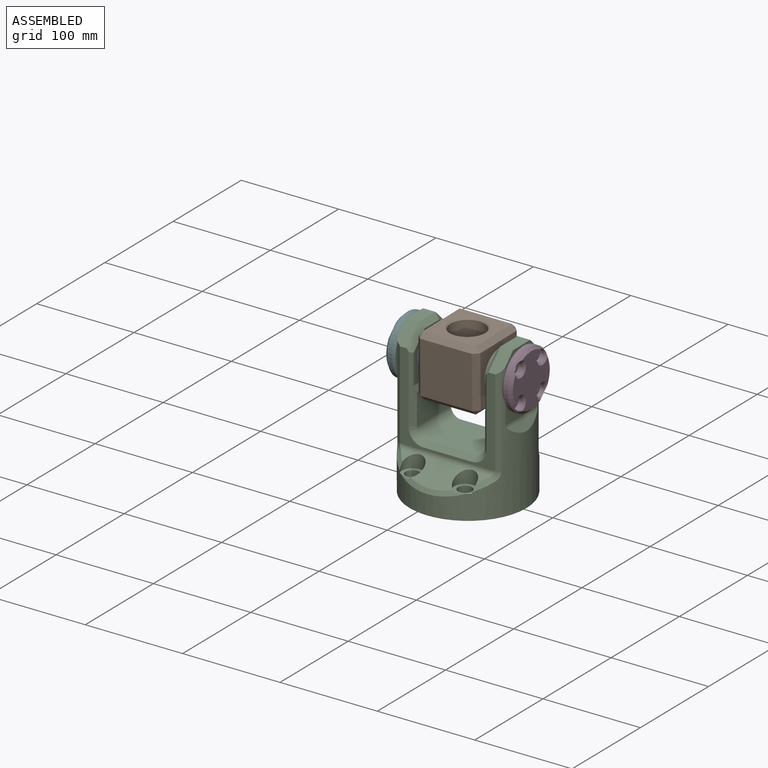
[diagram: assembled view]
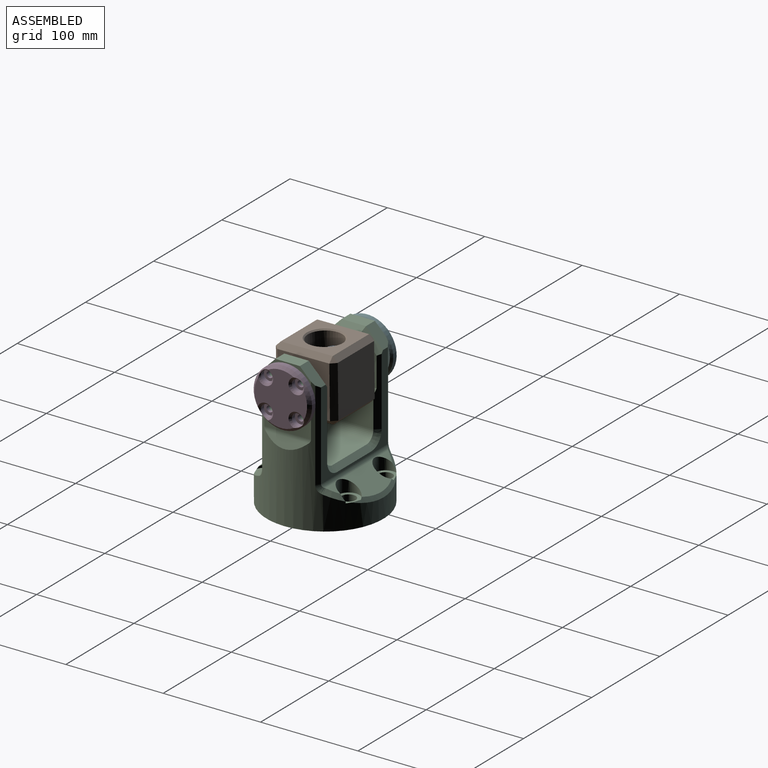
[diagram: assembled view, second angle]
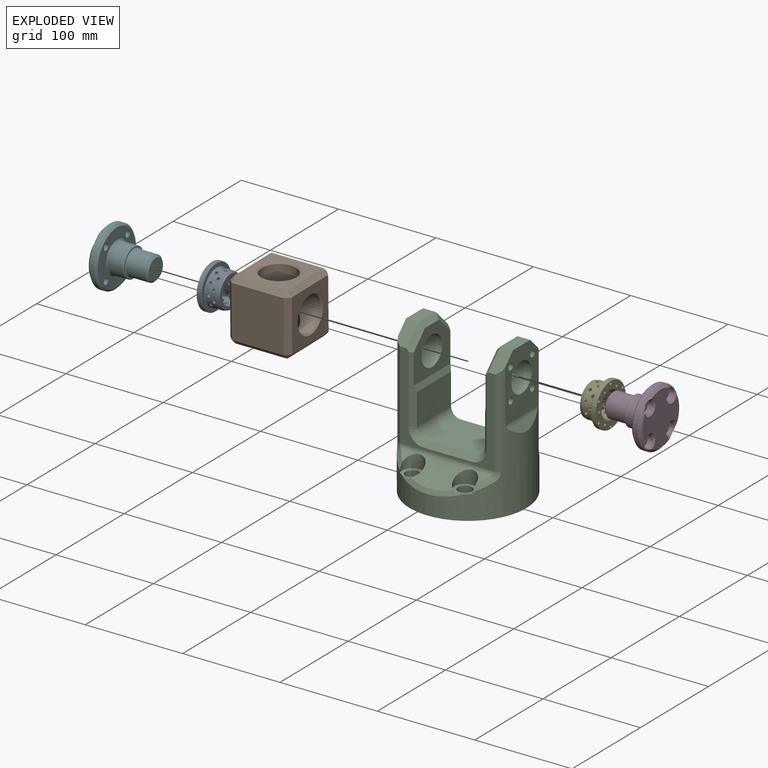
[diagram: exploded view]
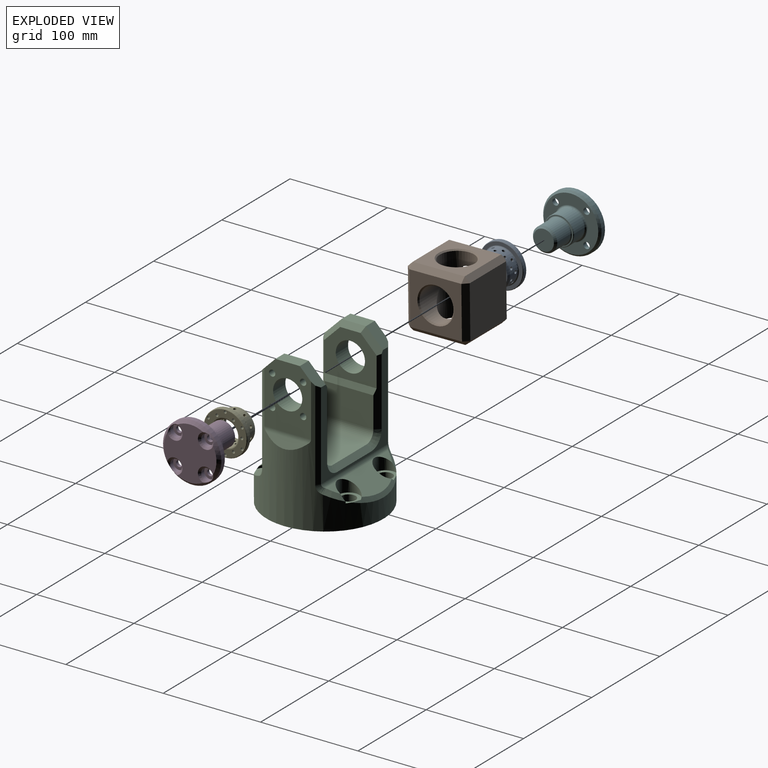
[diagram: exploded view, second angle]
ASSEMBLY  parts=6 mates=5
PART A: 56 faces, bbox 20x45x45 mm
  f0: cylinder r=12.5mm len=25mm, axis (-1,0,0), area 1187.6mm2, adj f6,f8,f36,f37,f38,f39,f40,f41
  f1: cylinder r=17.5mm len=35mm, axis (-1,0,0), area 1066.7mm2, adj f7,f11,f36,f37,f38,f39,f40,f41
  f2: plane 33.4x33.4mm, normal (1,0,0), area 303.7mm2, adj f6,f11
  f3: cylinder r=22.5mm len=45mm, axis (1,0,0), area 565.5mm2, adj f9,f10
  f4: plane 44x44mm, normal (-1,0,0), area 775.2mm2, adj f8,f10,f12,f14,f16,f18,f20,f22
  f5: plane 44x44mm, normal (1,0,0), area 445.3mm2, adj f7,f9
  f6: torus R=13.5mm, axis (-1,0,0), area 127mm2, adj f0,f2
  f7: torus R=18.5mm, axis (-1,0,0), area 176.3mm2, adj f1,f5
  f8: torus R=14.5mm, axis (-1,0,0), area 261.1mm2, adj f0,f4
  f9: cone r=22.5mm half-angle=45deg, axis (-1,0,0), area 98.9mm2, adj f3,f5
  f10: cone r=22mm half-angle=45deg, axis (1,0,0), area 98.9mm2, adj f3,f4
  f11: cone r=17.5mm half-angle=14.9deg, axis (-1,0,0), area 333.6mm2, adj f1,f2
  f12: cylinder r=1.5mm len=4mm, axis (-1,0,0), area 37.7mm2, adj f4,f13
  f13: plane 3x3mm, normal (-1,0,0), area 7.1mm2, adj f12
  f14: cylinder r=1.5mm len=4mm, axis (-1,0,0), area 37.7mm2, adj f4,f15
  f15: plane 3x3mm, normal (-1,0,0), area 7.1mm2, adj f14
  f16: cylinder r=1.5mm len=4mm, axis (-1,0,0), area 37.7mm2, adj f4,f17
  f17: plane 3x3mm, normal (-1,0,0), area 7.1mm2, adj f16
  f18: cylinder r=1.5mm len=4mm, axis (-1,0,0), area 37.7mm2, adj f4,f19
  f19: plane 3x3mm, normal (-1,0,0), area 7.1mm2, adj f18
  f20: cylinder r=1.5mm len=4mm, axis (-1,0,0), area 37.7mm2, adj f4,f21
  f21: plane 3x3mm, normal (-1,0,0), area 7.1mm2, adj f20
  f22: cylinder r=1.5mm len=4mm, axis (-1,0,0), area 37.7mm2, adj f4,f23
  f23: plane 3x3mm, normal (-1,0,0), area 7.1mm2, adj f22
  f24: cylinder r=1.5mm len=4mm, axis (-1,0,0), area 37.7mm2, adj f4,f25
  f25: plane 3x3mm, normal (-1,0,0), area 7.1mm2, adj f24
  f26: cylinder r=1.5mm len=4mm, axis (-1,0,0), area 37.7mm2, adj f4,f27
  f27: plane 3x3mm, normal (-1,0,0), area 7.1mm2, adj f26
  f28: cylinder r=1.5mm len=4mm, axis (-1,0,0), area 37.7mm2, adj f4,f29
  f29: plane 3x3mm, normal (-1,0,0), area 7.1mm2, adj f28
  f30: cylinder r=1.5mm len=4mm, axis (-1,0,0), area 37.7mm2, adj f4,f31
  f31: plane 3x3mm, normal (-1,0,0), area 7.1mm2, adj f30
  f32: cylinder r=1.5mm len=4mm, axis (-1,0,0), area 37.7mm2, adj f4,f33
  f33: plane 3x3mm, normal (-1,0,0), area 7.1mm2, adj f32
  f34: cylinder r=1.5mm len=4mm, axis (-1,0,0), area 37.7mm2, adj f4,f35
  f35: plane 3x3mm, normal (-1,0,0), area 7.1mm2, adj f34
  f36: cylinder r=1.5mm len=6.47mm, axis (0,0,1), area 50.3mm2, adj f0,f1
  f37: cylinder r=1.5mm len=5.09mm, axis (0,0,1), area 47.3mm2, adj f0,f1
  f38: cylinder r=1.5mm len=7mm, axis (0,-0.59,0.81), area 50.3mm2, adj f0,f1
  f39: cylinder r=1.5mm len=5.88mm, axis (0,-0.59,0.81), area 47.3mm2, adj f0,f1
  f40: cylinder r=1.5mm len=7.08mm, axis (0,-0.95,0.31), area 50.3mm2, adj f0,f1
  f41: cylinder r=1.5mm len=5.77mm, axis (0,-0.95,0.31), area 47.3mm2, adj f0,f1
  f42: cylinder r=1.5mm len=7.08mm, axis (0,-0.95,-0.31), area 50.3mm2, adj f0,f1
  f43: cylinder r=1.5mm len=5.77mm, axis (0,-0.95,-0.31), area 47.3mm2, adj f0,f1
  f44: cylinder r=1.5mm len=7mm, axis (0,-0.59,-0.81), area 50.3mm2, adj f0,f1
  f45: cylinder r=1.5mm len=5.88mm, axis (0,-0.59,-0.81), area 47.3mm2, adj f0,f1
  f46: cylinder r=1.5mm len=6.47mm, axis (0,0,-1), area 50.3mm2, adj f0,f1
  f47: cylinder r=1.5mm len=5.09mm, axis (0,0,-1), area 47.3mm2, adj f0,f1
  f48: cylinder r=1.5mm len=7mm, axis (0,0.59,-0.81), area 50.3mm2, adj f0,f1
  f49: cylinder r=1.5mm len=5.88mm, axis (0,0.59,-0.81), area 47.3mm2, adj f0,f1
  f50: cylinder r=1.5mm len=7.08mm, axis (0,0.95,-0.31), area 50.3mm2, adj f0,f1
  f51: cylinder r=1.5mm len=5.77mm, axis (0,0.95,-0.31), area 47.3mm2, adj f0,f1
  f52: cylinder r=1.5mm len=7.08mm, axis (0,0.95,0.31), area 50.3mm2, adj f0,f1
  f53: cylinder r=1.5mm len=5.77mm, axis (0,0.95,0.31), area 47.3mm2, adj f0,f1
  f54: cylinder r=1.5mm len=7mm, axis (0,0.59,0.81), area 50.3mm2, adj f0,f1
  f55: cylinder r=1.5mm len=5.88mm, axis (0,0.59,0.81), area 47.3mm2, adj f0,f1
PART B: 34 faces, bbox 63.5x63.5x63.5 mm
  f0: cylinder r=17.5mm len=35mm, axis (0,1,0), area 2126.5mm2, adj f8,f9,f32
  f1: plane 53.34x53.34mm, normal (0,0,-1), area 2845.2mm2, adj f16,f17,f25,f26
  f2: plane 53.34x53.34mm, normal (1,0,0), area 1738.3mm2, adj f10,f13,f17,f18,f31
  f3: plane 53.34x53.34mm, normal (0,0,1), area 2845.2mm2, adj f13,f14,f23,f24
  f4: cylinder r=17.5mm len=35mm, axis (0,1,0), area 2126.5mm2, adj f8,f9,f30
  f5: plane 53.34x53.34mm, normal (-1,0,0), area 1738.3mm2, adj f15,f24,f25,f29,f33
  f6: plane 53.34x53.34mm, normal (0,-1,0), area 1738.3mm2, adj f10,f14,f15,f16,f32
  f7: plane 53.34x53.34mm, normal (0,1,0), area 1738.3mm2, adj f18,f23,f26,f29,f30
  f8: cylinder r=17.5mm len=35mm, axis (-1,0,0), area 2126.5mm2, adj f0,f4,f31
  f9: cylinder r=17.5mm len=35mm, axis (-1,0,0), area 2126.5mm2, adj f0,f4,f33
  f10: plane 53.34x5.08mm, normal (0.71,-0.71,0), area 383.2mm2, adj f2,f6,f11,f12
  f11: plane 5.08x5.08mm, normal (0.58,-0.58,0.58), area 22.3mm2, adj f10,f13,f14
  f12: plane 5.08x5.08mm, normal (0.58,-0.58,-0.58), area 22.3mm2, adj f10,f16,f17
  f13: plane 53.34x5.08mm, normal (0.71,0,0.71), area 383.2mm2, adj f2,f3,f11,f19
  f14: plane 53.34x5.08mm, normal (0,-0.71,0.71), area 383.2mm2, adj f3,f6,f11,f20
  f15: plane 53.34x5.08mm, normal (-0.71,-0.71,0), area 383.2mm2, adj f5,f6,f20,f21
  f16: plane 53.34x5.08mm, normal (0,-0.71,-0.71), area 383.2mm2, adj f1,f6,f12,f21
  f17: plane 53.34x5.08mm, normal (0.71,0,-0.71), area 383.2mm2, adj f1,f2,f12,f22
  f18: plane 53.34x5.08mm, normal (0.71,0.71,0), area 383.2mm2, adj f2,f7,f19,f22
  f19: plane 5.08x5.08mm, normal (0.58,0.58,0.58), area 22.3mm2, adj f13,f18,f23
  f20: plane 5.08x5.08mm, normal (-0.58,-0.58,0.58), area 22.3mm2, adj f14,f15,f24
  f21: plane 5.08x5.08mm, normal (-0.58,-0.58,-0.58), area 22.3mm2, adj f15,f16,f25
  f22: plane 5.08x5.08mm, normal (0.58,0.58,-0.58), area 22.3mm2, adj f17,f18,f26
  f23: plane 53.34x5.08mm, normal (0,0.71,0.71), area 383.2mm2, adj f3,f7,f19,f27
  f24: plane 53.34x5.08mm, normal (-0.71,0,0.71), area 383.2mm2, adj f3,f5,f20,f27
  f25: plane 53.34x5.08mm, normal (-0.71,0,-0.71), area 383.2mm2, adj f1,f5,f21,f28
  f26: plane 53.34x5.08mm, normal (0,0.71,-0.71), area 383.2mm2, adj f1,f7,f22,f28
  f27: plane 5.08x5.08mm, normal (-0.58,0.58,0.58), area 22.3mm2, adj f23,f24,f29
  f28: plane 5.08x5.08mm, normal (-0.58,0.58,-0.58), area 22.3mm2, adj f25,f26,f29
  f29: plane 53.34x5.08mm, normal (-0.71,0.71,0), area 383.2mm2, adj f5,f7,f27,f28
  f30: cone r=18.77mm half-angle=45deg, axis (0,1,0), area 204.7mm2, adj f4,f7
  f31: cone r=17.5mm half-angle=45deg, axis (1,0,0), area 204.7mm2, adj f2,f8
  f32: cone r=17.5mm half-angle=45deg, axis (0,-1,0), area 204.7mm2, adj f0,f6
  f33: cone r=17.5mm half-angle=45deg, axis (-1,0,0), area 204.7mm2, adj f5,f9
PART C: 93 faces, bbox 121.6x121.6x151.6 mm
  f0: cylinder r=7.25mm len=25mm, axis (0,0,-1), area 1138.8mm2, adj f19,f74
  f1: cylinder r=7.25mm len=25mm, axis (0,0,-1), area 1138.8mm2, adj f19,f76
  f2: cylinder r=7.25mm len=25mm, axis (0,0,-1), area 1138.8mm2, adj f19,f72
  f3: cylinder r=7.25mm len=25mm, axis (0,0,-1), area 1138.8mm2, adj f19,f70
  f4: plane 48.92x26.63mm, normal (0,-0.5,0.87), area 1000.5mm2, adj f15,f17,f73,f75
  f5: plane 17.15x11.32mm, normal (0,-0.5,0.87), area 74.1mm2, adj f13,f17,f75
  f6: plane 17.15x11.32mm, normal (0,-0.5,0.87), area 74.1mm2, adj f14,f17,f73
  f7: plane 17.15x11.32mm, normal (0,0.5,0.87), area 74.1mm2, adj f10,f18,f71
  f8: plane 17.15x11.32mm, normal (0,0.5,0.87), area 74.1mm2, adj f11,f18,f69
  f9: plane 48.92x26.63mm, normal (0,0.5,0.87), area 1000.5mm2, adj f12,f18,f69,f71
  f10: bspline ~28.07x22.61mm, area 100.7mm2, adj f7,f16,f63,f71
  f11: bspline ~28.07x22.61mm, area 100.7mm2, adj f8,f16,f62,f69
  f12: bspline ~100.58x27.5mm, area 276.5mm2, adj f9,f16,f69,f70,f71,f72
  f13: bspline ~28.07x22.61mm, area 100.7mm2, adj f5,f16,f66,f75
  f14: bspline ~28.07x22.61mm, area 100.7mm2, adj f6,f16,f67,f73
  f15: bspline ~100.58x27.5mm, area 276.5mm2, adj f4,f16,f73,f74,f75,f76
  f16: cylinder r=60mm len=138.52mm, axis (0,0,-1), area 16262.5mm2, adj f10,f11,f12,f13,f14,f15,f19,f31
  f17: cylinder r=5mm len=97.98mm, axis (1,0,0), area 492.3mm2, adj f4,f5,f6,f40,f66,f67,f73,f75
  f18: cylinder r=5mm len=97.98mm, axis (1,0,0), area 492.3mm2, adj f7,f8,f9,f43,f62,f63,f69,f71
  f19: plane 120x120mm, normal (0,0,-1), area 10649.2mm2, adj f0,f1,f2,f3,f16
  f20: plane 25x13mm, normal (0,0,1), area 325mm2, adj f31,f38,f41,f56
  f21: plane 25x13mm, normal (0,0,1), area 325mm2, adj f32,f39,f42,f49
  f22: plane 54x6.25mm, normal (0.95,0,0.3), area 341.2mm2, adj f23,f29,f52,f60
  f23: plane 50x31.75mm, normal (1,0,0), area 1587.5mm2, adj f22,f24,f52,f60
  f24: cylinder r=10mm len=50mm, axis (0,-1,0), area 785.4mm2, adj f23,f25,f50,f59
  f25: plane 50x50mm, normal (0,0,1), area 2500mm2, adj f24,f26,f48,f57
  f26: cylinder r=10mm len=50mm, axis (0,-1,0), area 785.4mm2, adj f25,f27,f46,f55
  f27: plane 50x31.75mm, normal (-1,0,0), area 1587.5mm2, adj f26,f28,f45,f53
  f28: plane 54x6.25mm, normal (-0.95,0,0.3), area 341.2mm2, adj f27,f30,f45,f53
  f29: plane 54x47mm, normal (1,0,0), area 1556.5mm2, adj f22,f44,f52,f54,f56,f58,f60
  f30: plane 54x47mm, normal (-1,0,0), area 1556.5mm2, adj f28,f37,f45,f47,f49,f51,f53
  f31: plane 65.17x47.96mm, normal (-1,0,0), area 2154mm2, adj f16,f20,f34,f38,f41,f44,f77,f79
  f32: plane 65.17x47.96mm, normal (1,0,0), area 2154mm2, adj f16,f21,f35,f37,f39,f42,f85,f87
  f33: plane 43.76x9.25mm, normal (-0.91,0,0.41), area 297.7mm2, adj f16,f34
  f34: cylinder r=10mm len=47.96mm, axis (0,-1,0), area 192.5mm2, adj f16,f31,f33
  f35: cylinder r=10mm len=47.96mm, axis (0,-1,0), area 192.5mm2, adj f16,f32,f36
  f36: plane 43.76x9.25mm, normal (0.91,0,0.41), area 297.7mm2, adj f16,f35
  f37: cylinder r=15mm len=30mm, axis (1,0,0), area 1696.5mm2, adj f30,f32
  f38: plane 17.52x17.52mm, normal (0,-0.71,0.71), area 303.6mm2, adj f16,f20,f31,f40,f54,f68
  f39: plane 17.52x17.52mm, normal (0,-0.71,0.71), area 303.6mm2, adj f16,f21,f32,f40,f47,f65
  f40: plane 97.98x89.61mm, normal (0,-1,0), area 1871.2mm2, adj f17,f38,f39,f45,f46,f47,f48,f50
  f41: plane 17.52x17.52mm, normal (0,0.71,0.71), area 303.6mm2, adj f16,f20,f31,f43,f58,f64
  f42: plane 17.52x17.52mm, normal (0,0.71,0.71), area 303.6mm2, adj f16,f21,f32,f43,f51,f61
  f43: plane 97.98x89.61mm, normal (0,1,0), area 1871.2mm2, adj f18,f41,f42,f51,f53,f55,f57,f58
  f44: cylinder r=15mm len=30mm, axis (1,0,0), area 1696.5mm2, adj f29,f31
  f45: plane 69.67x5mm, normal (-0.71,-0.71,0), area 391.6mm2, adj f27,f28,f30,f40,f46,f47
  f46: cone r=10mm half-angle=45deg, axis (0,-1,0), area 138.8mm2, adj f26,f40,f45,f48
  f47: plane 21.57x19.57mm, normal (-0.71,-0.5,0.5), area 176.4mm2, adj f30,f39,f40,f45,f49
  f48: plane 50x5mm, normal (0,-0.71,0.71), area 353.6mm2, adj f25,f40,f46,f50
  f49: plane 25x5mm, normal (-0.71,0,0.71), area 162.1mm2, adj f21,f30,f47,f51
  f50: cone r=15mm half-angle=45deg, axis (0,-1,0), area 138.8mm2, adj f24,f40,f48,f52
  f51: plane 21.57x19.57mm, normal (-0.71,0.5,0.5), area 176.4mm2, adj f30,f42,f43,f49,f53
  f52: plane 69.67x5mm, normal (0.71,-0.71,0), area 391.6mm2, adj f22,f23,f29,f40,f50,f54
  f53: plane 69.67x5mm, normal (-0.71,0.71,0), area 391.6mm2, adj f27,f28,f30,f43,f51,f55
  f54: plane 21.57x19.57mm, normal (0.71,-0.5,0.5), area 176.4mm2, adj f29,f38,f40,f52,f56
  f55: cone r=15mm half-angle=45deg, axis (0,1,0), area 138.8mm2, adj f26,f43,f53,f57
  f56: plane 25x5mm, normal (0.71,0,0.71), area 162.1mm2, adj f20,f29,f54,f58
  f57: plane 50x5mm, normal (0,0.71,0.71), area 353.6mm2, adj f25,f43,f55,f59
  f58: plane 21.57x19.57mm, normal (0.71,0.5,0.5), area 176.4mm2, adj f29,f41,f43,f56,f60
  f59: cone r=10mm half-angle=45deg, axis (0,1,0), area 138.8mm2, adj f24,f43,f57,f60
  f60: plane 69.67x5mm, normal (0.71,0.71,0), area 391.6mm2, adj f22,f23,f29,f43,f58,f59
  f61: plane 92.34x4.45mm, normal (0.52,0.85,0), area 475.1mm2, adj f16,f42,f43,f62
  f62: bspline ~8.66x7.35mm, area 47.7mm2, adj f11,f16,f18,f61
  f63: bspline ~8.66x7.35mm, area 47.7mm2, adj f10,f16,f18,f64
  f64: plane 92.34x4.45mm, normal (-0.52,0.85,0), area 475.1mm2, adj f16,f41,f43,f63
  f65: plane 92.34x4.45mm, normal (0.52,-0.85,0), area 475.1mm2, adj f16,f39,f40,f66
  f66: bspline ~8.66x7.35mm, area 47.7mm2, adj f13,f16,f17,f65
  f67: bspline ~8.66x7.35mm, area 47.7mm2, adj f14,f16,f17,f68
  f68: plane 92.34x4.45mm, normal (-0.52,-0.85,0), area 475.1mm2, adj f16,f38,f40,f67
  f69: cylinder r=11mm len=22mm, axis (0,0,-1), area 459.3mm2, adj f8,f9,f11,f12,f16,f18,f70
  f70: plane 22.24x21.76mm, normal (0,0,1), area 193.4mm2, adj f3,f12,f16,f69
  f71: cylinder r=11mm len=22mm, axis (0,0,-1), area 459.3mm2, adj f7,f9,f10,f12,f16,f18,f72
  f72: plane 22.24x21.76mm, normal (0,0,1), area 193.4mm2, adj f2,f12,f16,f71
  f73: cylinder r=11mm len=22mm, axis (0,0,-1), area 459.3mm2, adj f4,f6,f14,f15,f16,f17,f74
  f74: plane 22.24x21.76mm, normal (0,0,1), area 193.4mm2, adj f0,f15,f16,f73
  f75: cylinder r=11mm len=22mm, axis (0,0,-1), area 459.3mm2, adj f4,f5,f13,f15,f16,f17,f76
  f76: plane 22.24x21.76mm, normal (0,0,1), area 193.4mm2, adj f1,f15,f16,f75
  f77: cylinder r=3.25mm len=16mm, axis (-1,0,0), area 326.7mm2, adj f31,f78
  f78: cone r=0mm half-angle=59deg, axis (-1,0,0), area 38.7mm2, adj f77
  f79: cylinder r=3.25mm len=16mm, axis (-1,0,0), area 326.7mm2, adj f31,f80
  f80: cone r=0mm half-angle=59deg, axis (-1,0,0), area 38.7mm2, adj f79
  f81: cylinder r=3.25mm len=16mm, axis (-1,0,0), area 326.7mm2, adj f31,f82
  f82: cone r=0mm half-angle=59deg, axis (-1,0,0), area 38.7mm2, adj f81
  f83: cylinder r=3.25mm len=16mm, axis (-1,0,0), area 326.7mm2, adj f31,f84
  f84: cone r=0mm half-angle=59deg, axis (-1,0,0), area 38.7mm2, adj f83
  f85: cylinder r=3.25mm len=16mm, axis (1,0,0), area 326.7mm2, adj f32,f86
  f86: cone r=0mm half-angle=59deg, axis (1,0,0), area 38.7mm2, adj f85
  f87: cylinder r=3.25mm len=16mm, axis (1,0,0), area 326.7mm2, adj f32,f88
  f88: cone r=0mm half-angle=59deg, axis (1,0,0), area 38.7mm2, adj f87
  f89: cylinder r=3.25mm len=16mm, axis (1,0,0), area 326.7mm2, adj f32,f90
  f90: cone r=0mm half-angle=59deg, axis (1,0,0), area 38.7mm2, adj f89
  f91: cylinder r=3.25mm len=16mm, axis (1,0,0), area 326.7mm2, adj f32,f92
  f92: cone r=0mm half-angle=59deg, axis (1,0,0), area 38.7mm2, adj f91
PART D: 29 faces, bbox 50x60x60 mm
  f0: cone r=30mm half-angle=45deg, axis (1,0,0), area 662.9mm2, adj f2,f3,f25,f26,f27,f28
  f1: plane 56x56mm, normal (1,0,0), area 1422.4mm2, adj f8,f9,f13,f16,f19,f22
  f2: cylinder r=30mm len=60mm, axis (1,0,0), area 942.5mm2, adj f0,f9
  f3: plane 54x54mm, normal (-1,0,0), area 1632.5mm2, adj f0,f25,f26,f27,f28
  f4: cylinder r=15mm len=30mm, axis (1,0,0), area 1413.7mm2, adj f8,f10
  f5: plane 29x29mm, normal (1,0,0), area 88mm2, adj f10,f11
  f6: plane 21x21mm, normal (1,0,0), area 346.4mm2, adj f12
  f7: cylinder r=12.5mm len=25mm, axis (-1,0,0), area 1531.5mm2, adj f11,f12
  f8: torus R=17mm, axis (1,0,0), area 310.4mm2, adj f1,f4
  f9: cone r=28mm half-angle=45deg, axis (-1,0,0), area 515.4mm2, adj f1,f2
  f10: cone r=14.5mm half-angle=45deg, axis (-1,0,0), area 65.5mm2, adj f4,f5
  f11: torus R=13.5mm, axis (1,0,0), area 127mm2, adj f5,f7
  f12: cone r=10.5mm half-angle=45deg, axis (-1,0,0), area 204.4mm2, adj f6,f7
  f13: cylinder r=3.25mm len=6.5mm, axis (-1,0,0), area 71.5mm2, adj f1,f14
  f14: plane 12x12mm, normal (-1,0,0), area 79.9mm2, adj f13,f15
  f15: cylinder r=6mm len=12mm, axis (-1,0,0), area 169.6mm2, adj f14,f28
  f16: cylinder r=3.25mm len=6.5mm, axis (-1,0,0), area 71.5mm2, adj f1,f17
  f17: plane 12x12mm, normal (-1,0,0), area 79.9mm2, adj f16,f18
  f18: cylinder r=6mm len=12mm, axis (-1,0,0), area 169.6mm2, adj f17,f27
  f19: cylinder r=3.25mm len=6.5mm, axis (-1,0,0), area 71.5mm2, adj f1,f20
  f20: plane 12x12mm, normal (-1,0,0), area 79.9mm2, adj f19,f21
  f21: cylinder r=6mm len=12mm, axis (-1,0,0), area 169.6mm2, adj f20,f26
  f22: cylinder r=3.25mm len=6.5mm, axis (-1,0,0), area 71.5mm2, adj f1,f23
  f23: plane 12x12mm, normal (-1,0,0), area 79.9mm2, adj f22,f24
  f24: cylinder r=6mm len=12mm, axis (-1,0,0), area 169.6mm2, adj f23,f25
  f25: cone r=6mm half-angle=45deg, axis (-1,0,0), area 96.9mm2, adj f0,f3,f24
  f26: cone r=6mm half-angle=45deg, axis (-1,0,0), area 96.9mm2, adj f0,f3,f21
  f27: cone r=6mm half-angle=45deg, axis (-1,0,0), area 96.9mm2, adj f0,f3,f18
  f28: cone r=6mm half-angle=45deg, axis (-1,0,0), area 96.9mm2, adj f0,f3,f15
PART E: same geometry as A
PART F: same geometry as D
PLACE A t=(14.96,-103.07,-14.57)mm
PLACE B rot(axis=(1,0,0),90.7deg) t=(14.96,-103.07,-14.57)mm
PLACE C t=(15.21,-103.07,-14.57)mm
PLACE D rot(axis=(0,1,0),180deg) t=(15.46,-103.07,-14.57)mm
PLACE E rot(axis=(0,1,0),180deg) t=(15.46,-103.07,-15.56)mm
PLACE F t=(14.96,-103.07,-14.57)mm
MATE fastened C.f37 <-> A.f0  axis (1,0,0) through (-21.79,-103.07,-14.57)mm
MATE fastened C.f37 <-> F.f0  axis (-1,0,0) through (-39.79,-103.07,-14.57)mm
MATE fastened C.f37 <-> D.f0  axis (1,0,0) through (70.21,-103.07,-14.57)mm
MATE revolute B.f8 <-> A.f0  axis (-1,0,0) through (-16.79,-103.07,-14.57)mm
MATE fastened E.f0 <-> C.f30  axis (1,0,0) through (52.21,-103.07,-15.56)mm
